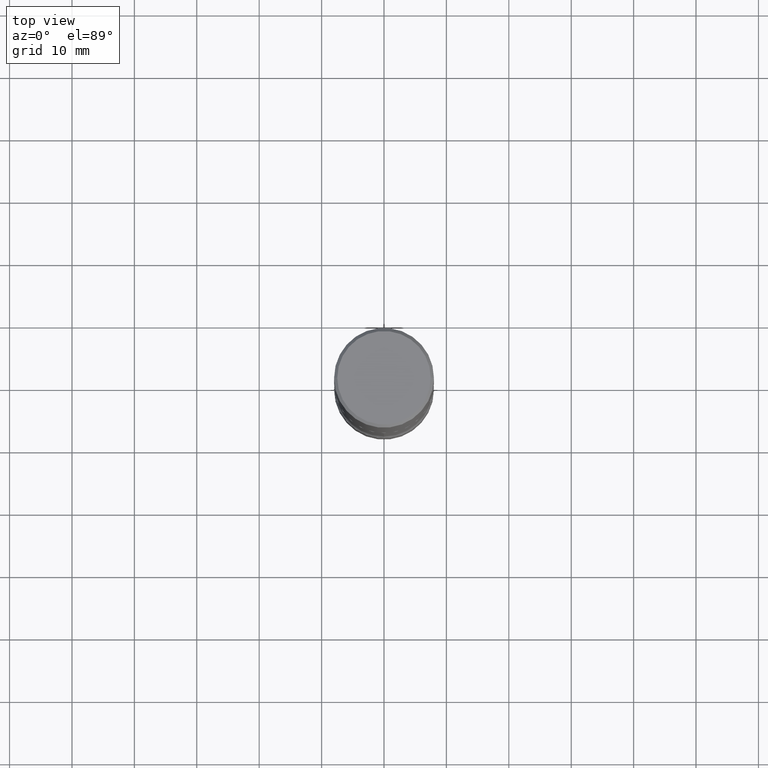
[diagram: clean part render]
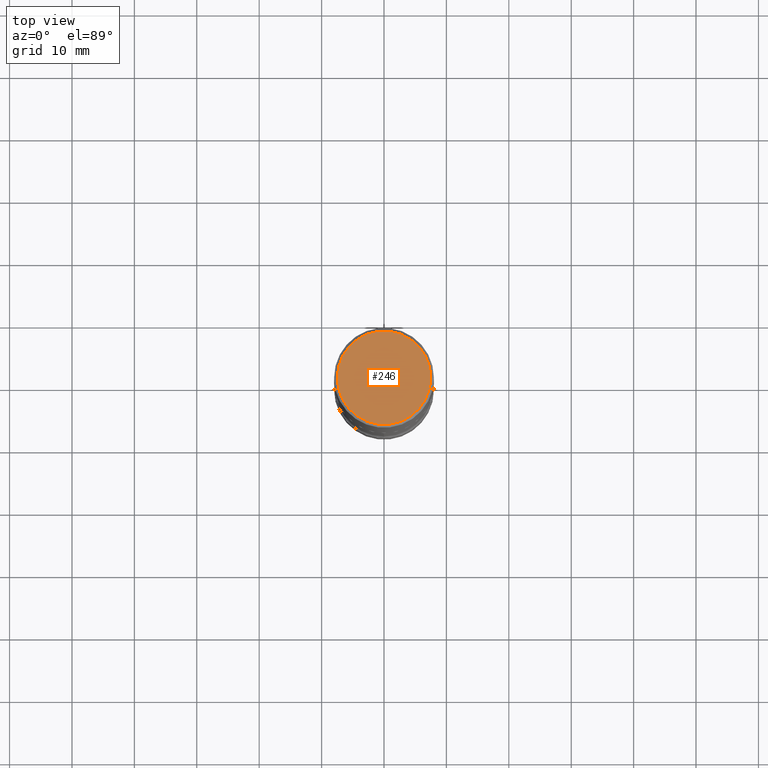
[diagram: same view with one face highlighted and labeled with its STEP entity id]
A machine part, top view. The second image highlights one B-rep face of the part: STEP entity #246.
In plain terms, the highlighted planar face has unit normal (0, -0, -1).
Its self-contained STEP definition (entity closure, byte-faithful):
#5 = DIRECTION ( 'NONE',  ( -2.445468806185136597E-29, 3.491481338843145583E-15, 1.000000000000000000 ) ) ;
#20 = AXIS2_PLACEMENT_3D ( 'NONE', #385, #5, #215 ) ;
#59 = EDGE_LOOP ( 'NONE', ( #281, #443 ) ) ;
#70 = CARTESIAN_POINT ( 'NONE',  ( 0.2949499999999998234, -2.127023677808859286E-15, 1.280553747031587399E-17 ) ) ;
#90 = CARTESIAN_POINT ( 'NONE',  ( 2.059624841783562880E-15, 0.2949499999999998234, -1.023409652156634547E-15 ) ) ;
#116 = CIRCLE ( 'NONE', #500, 0.2949499999999998234 ) ;
#155 = DIRECTION ( 'NONE',  ( 1.000000000000000000, -6.982962677686267499E-15, 4.876053491004737710E-29 ) ) ;
#157 = EDGE_CURVE ( 'NONE', #188, #544, #172, .T. ) ;
#172 = CIRCLE ( 'NONE', #20, 0.2949499999999998234 ) ;
#188 = VERTEX_POINT ( 'NONE', #263 ) ;
#207 = DIRECTION ( 'NONE',  ( 2.438088387897960049E-29, -3.491481338843145188E-15, -1.000000000000000000 ) ) ;
#215 = DIRECTION ( 'NONE',  ( 1.000000000000000000, -6.982962677686267499E-15, 4.876053491004737710E-29 ) ) ;
#218 = CARTESIAN_POINT ( 'NONE',  ( -3.131554243005659264E-46, 4.471029511141341874E-32, 1.280553747030123384E-17 ) ) ;
#226 = DIRECTION ( 'NONE',  ( -1.000000000000000000, 6.982962677686265922E-15, -4.876176775795935793E-29 ) ) ;
#239 = AXIS2_PLACEMENT_3D ( 'NONE', #90, #207, #226 ) ;
#246 = ADVANCED_FACE ( 'NONE', ( #391 ), #434, .F. ) ;
#263 = CARTESIAN_POINT ( 'NONE',  ( -0.2949499999999998234, 2.094539655171994135E-15, 1.280553747028670770E-17 ) ) ;
#281 = ORIENTED_EDGE ( 'NONE', *, *, #157, .T. ) ;
#385 = CARTESIAN_POINT ( 'NONE',  ( -3.131554243005659264E-46, 4.471029511141341874E-32, 1.280553747030123384E-17 ) ) ;
#391 = FACE_OUTER_BOUND ( 'NONE', #59, .T. ) ;
#392 = EDGE_CURVE ( 'NONE', #544, #188, #116, .T. ) ;
#434 = PLANE ( 'NONE',  #239 ) ;
#443 = ORIENTED_EDGE ( 'NONE', *, *, #392, .T. ) ;
#500 = AXIS2_PLACEMENT_3D ( 'NONE', #218, #531, #155 ) ;
#531 = DIRECTION ( 'NONE',  ( -2.445468806185136597E-29, 3.491481338843145583E-15, 1.000000000000000000 ) ) ;
#544 = VERTEX_POINT ( 'NONE', #70 ) ;